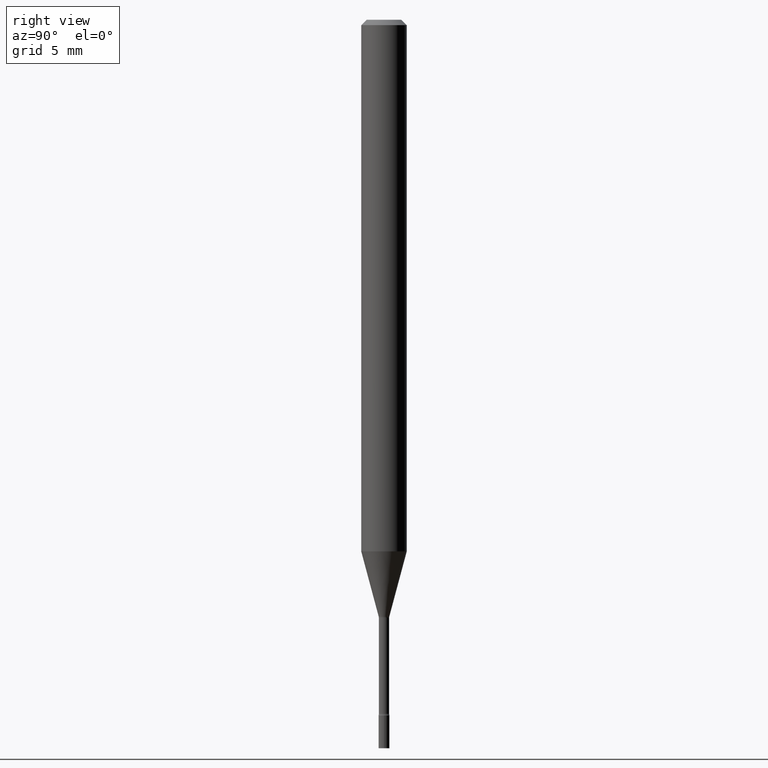
[diagram: clean part render]
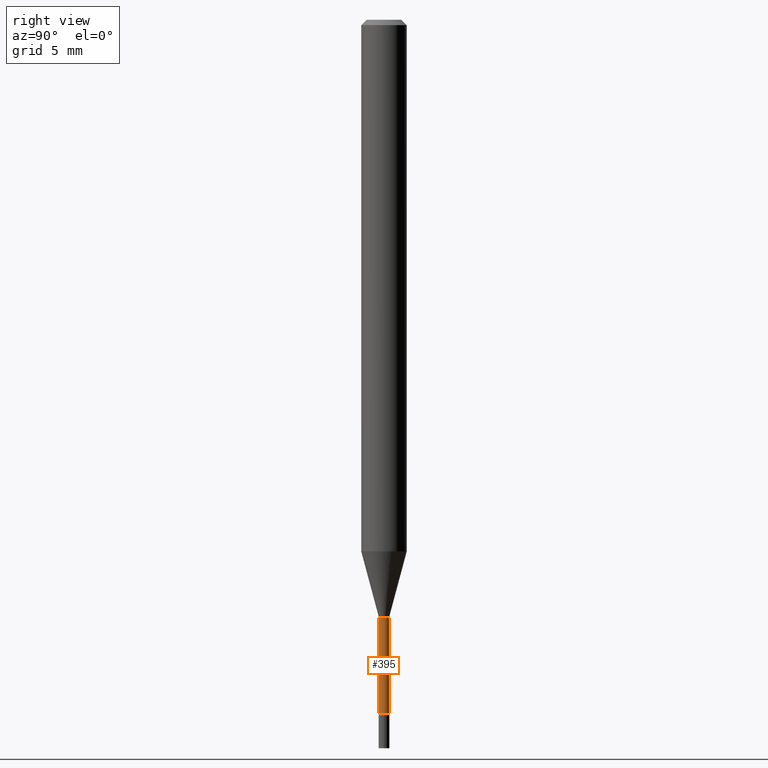
[diagram: same view with one face highlighted and labeled with its STEP entity id]
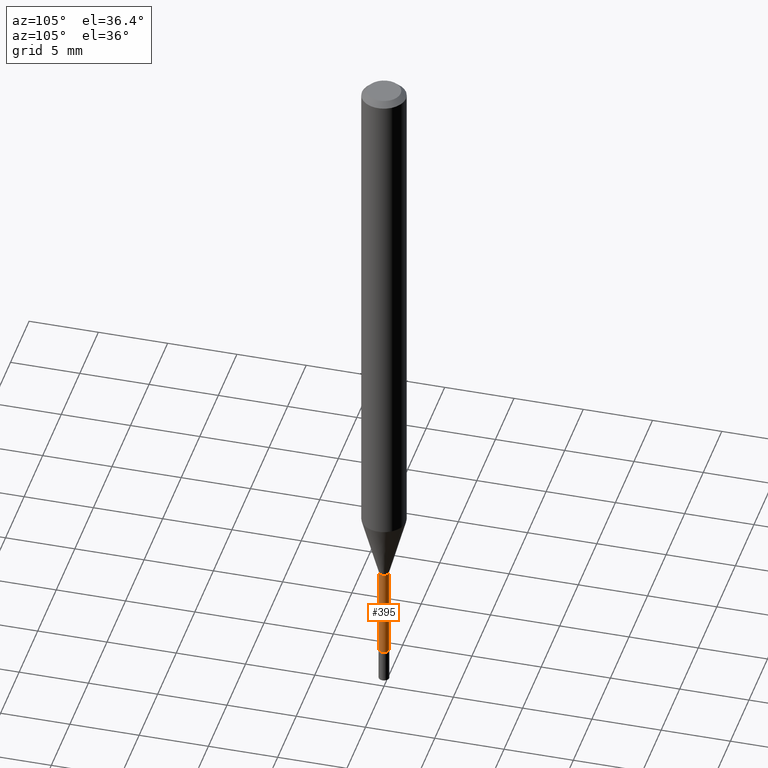
[diagram: same view with one face highlighted and labeled with its STEP entity id]
A machine part, right view. The second image highlights one B-rep face of the part: STEP entity #395.
A second angle (auxiliary view) of the same face is appended — the face is thin or edge-on in the first view.
In plain terms, the highlighted cylindrical surface (edge-blend (fillet) strip) has radius 0.3581 mm, axis along (-0, 0, 1).
Its self-contained STEP definition (entity closure, byte-faithful):
#13 = AXIS2_PLACEMENT_3D ( 'NONE', #173, #244, #202 ) ;
#17 = VERTEX_POINT ( 'NONE', #107 ) ;
#23 = EDGE_CURVE ( 'NONE', #17, #142, #380, .T. ) ;
#39 = ORIENTED_EDGE ( 'NONE', *, *, #23, .F. ) ;
#40 = CARTESIAN_POINT ( 'NONE',  ( 1.033839680531413325E-16, 0.01409999999999344243, -1.904882383367231036 ) ) ;
#41 = FACE_OUTER_BOUND ( 'NONE', #285, .T. ) ;
#89 = EDGE_CURVE ( 'NONE', #411, #125, #219, .T. ) ;
#92 = DIRECTION ( 'NONE',  ( -2.445433538299312121E-29, 3.491531844462969352E-15, 1.000000000000000000 ) ) ;
#96 = LINE ( 'NONE', #254, #197 ) ;
#99 = DIRECTION ( 'NONE',  ( -2.445433538299312121E-29, 3.491531844462969352E-15, 1.000000000000000000 ) ) ;
#106 = CARTESIAN_POINT ( 'NONE',  ( 4.015340214305888329E-29, -5.733007258235211804E-15, -1.641974787463811092 ) ) ;
#107 = CARTESIAN_POINT ( 'NONE',  ( -9.845977375533618088E-17, -0.01410000000000573121, -1.641974787463811092 ) ) ;
#110 = CARTESIAN_POINT ( 'NONE',  ( 1.001865257422209010E-16, 0.01409999999999426643, -1.641974787463811092 ) ) ;
#124 = CARTESIAN_POINT ( 'NONE',  ( -9.845977375533041233E-17, -0.01410000000000674256, -1.904882383367231036 ) ) ;
#125 = VERTEX_POINT ( 'NONE', #40 ) ;
#136 = ORIENTED_EDGE ( 'NONE', *, *, #300, .T. ) ;
#140 = ORIENTED_EDGE ( 'NONE', *, *, #89, .T. ) ;
#142 = VERTEX_POINT ( 'NONE', #110 ) ;
#173 = CARTESIAN_POINT ( 'NONE',  ( 0.000000000000000000, 0.000000000000000000, 0.000000000000000000 ) ) ;
#188 = AXIS2_PLACEMENT_3D ( 'NONE', #428, #465, #218 ) ;
#197 = VECTOR ( 'NONE', #99, 39.37007874015748143 ) ;
#202 = DIRECTION ( 'NONE',  ( -6.982962677686266711E-15, -1.000000000000000000, 3.491531844462969352E-15 ) ) ;
#218 = DIRECTION ( 'NONE',  ( -6.982962677686265922E-15, -1.000000000000000000, 0.000000000000000000 ) ) ;
#219 = CIRCLE ( 'NONE', #188, 0.01410000000000009336 ) ;
#244 = DIRECTION ( 'NONE',  ( -2.445433538299312121E-29, 3.491531844462969352E-15, 1.000000000000000000 ) ) ;
#246 = LINE ( 'NONE', #489, #407 ) ;
#254 = CARTESIAN_POINT ( 'NONE',  ( -9.845977375537667163E-17, -0.01410000000000004479, 4.923059900692802559E-17 ) ) ;
#285 = EDGE_LOOP ( 'NONE', ( #140, #136, #39, #449 ) ) ;
#297 = DIRECTION ( 'NONE',  ( -6.982962677686265922E-15, -1.000000000000000000, 0.000000000000000000 ) ) ;
#300 = EDGE_CURVE ( 'NONE', #125, #142, #246, .T. ) ;
#302 = DIRECTION ( 'NONE',  ( -2.445433538299312121E-29, 3.491531844462969352E-15, 1.000000000000000000 ) ) ;
#380 = CIRCLE ( 'NONE', #415, 0.01409999999999999795 ) ;
#395 = ADVANCED_FACE ( 'NONE', ( #41 ), #447, .T. ) ;
#407 = VECTOR ( 'NONE', #92, 39.37007874015748143 ) ;
#411 = VERTEX_POINT ( 'NONE', #124 ) ;
#415 = AXIS2_PLACEMENT_3D ( 'NONE', #106, #302, #297 ) ;
#428 = CARTESIAN_POINT ( 'NONE',  ( 4.658263266801754421E-29, -6.650957501483205980E-15, -1.904882383367231036 ) ) ;
#447 = CYLINDRICAL_SURFACE ( 'NONE', #13, 0.01410000000000004479 ) ;
#449 = ORIENTED_EDGE ( 'NONE', *, *, #518, .F. ) ;
#465 = DIRECTION ( 'NONE',  ( -2.445433538299312121E-29, 3.491531844462969352E-15, 1.000000000000000000 ) ) ;
#489 = CARTESIAN_POINT ( 'NONE',  ( 1.001865257421744321E-16, 0.01410000000000004479, -4.923059900692802559E-17 ) ) ;
#518 = EDGE_CURVE ( 'NONE', #411, #17, #96, .T. ) ;